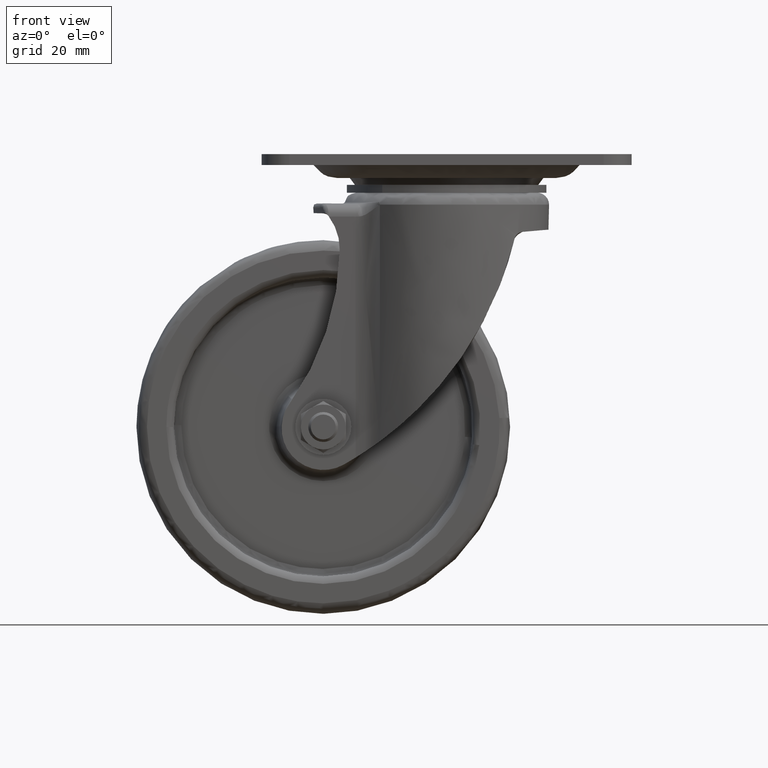
[diagram: clean part render]
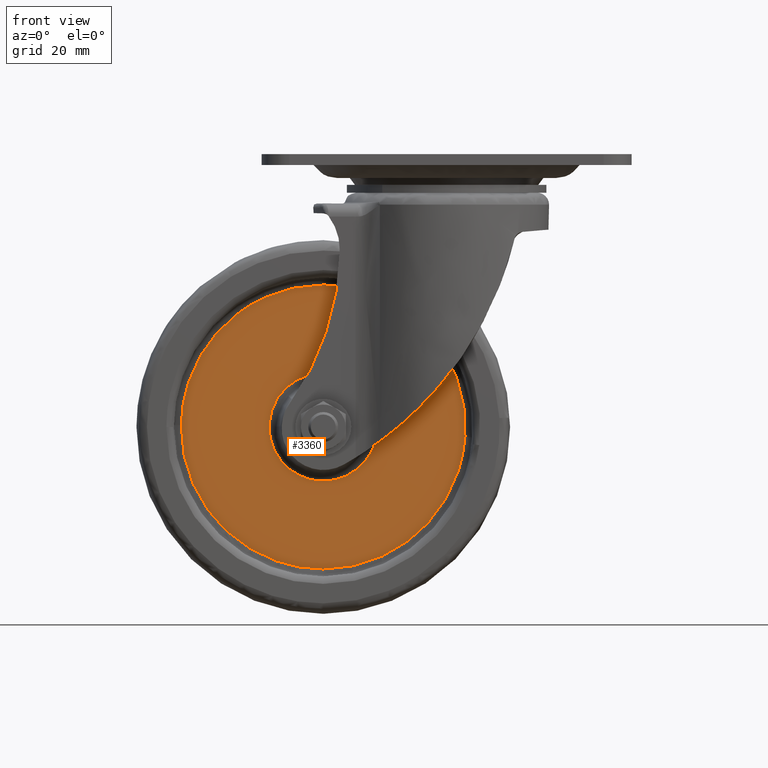
[diagram: same view with one face highlighted and labeled with its STEP entity id]
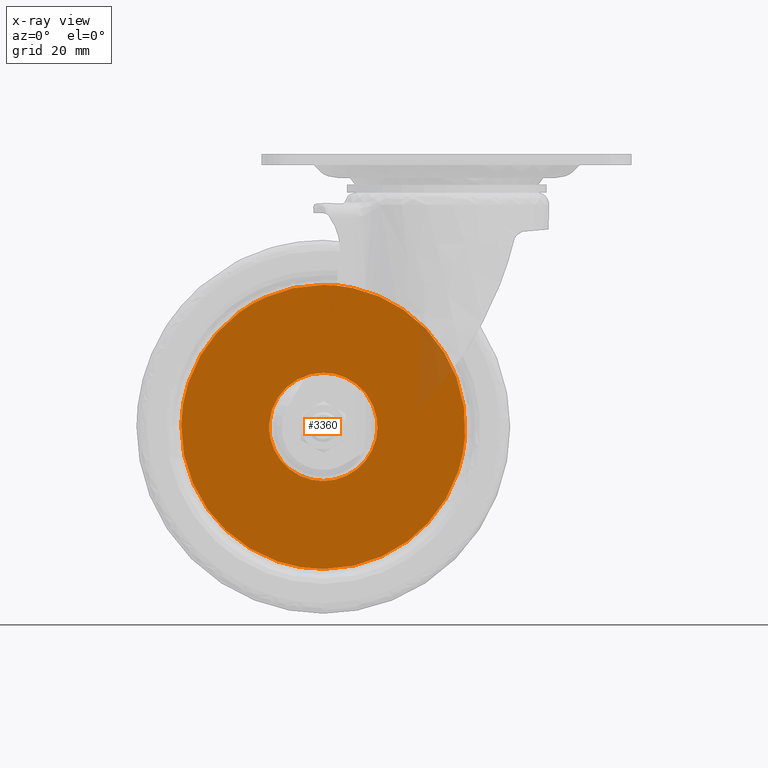
[diagram: x-ray of the same camera — body ghosted, the highlighted face saturated]
A machine part, front view. The second image highlights one B-rep face of the part: STEP entity #3360.
The next image is the same camera in x-ray: the body ghosted, the highlighted face saturated — about 3% of this face is hidden behind the body in this view.
In plain terms, the highlighted face is a freeform B-spline surface patch.
Its self-contained STEP definition (entity closure, byte-faithful):
#1558=CARTESIAN_POINT('',(4.907908623832196,-5.000000000000001,-75.649657561604528));
#1559=VERTEX_POINT('',#1558);
#1560=CARTESIAN_POINT('',(-32.999587000000091,-5.0,-34.999794000000009));
#1561=VERTEX_POINT('',#1560);
#1562=CARTESIAN_POINT('',(4.907908623832196,-5.000000000000001,-75.649657561604528));
#1563=CARTESIAN_POINT('',(5.055231833723968,-4.999999999999990,-73.544256542726103));
#1564=CARTESIAN_POINT('',(4.995580011670986,-5.000000000000036,-69.145981309447293));
#1565=CARTESIAN_POINT('',(3.710977208557743,-4.999999999999960,-62.338434710650453));
#1566=CARTESIAN_POINT('',(1.376740537811227,-5.000000000000074,-56.419110106806130));
#1567=CARTESIAN_POINT('',(-1.488439855238406,-4.999999999999910,-51.594217756226683));
#1568=CARTESIAN_POINT('',(-4.570140872767298,-5.000000000000020,-47.603434852771883));
#1569=CARTESIAN_POINT('',(-8.407316882347828,-5.000000000000008,-43.841873451447078));
#1570=CARTESIAN_POINT('',(-12.434383464425910,-4.999999999999978,-40.937553872145713));
#1571=CARTESIAN_POINT('',(-16.698232575700001,-5.000000000000064,-38.573338847144527));
#1572=CARTESIAN_POINT('',(-20.541283802044561,-4.999999999999915,-37.003881890258803));
#1573=CARTESIAN_POINT('',(-26.181142755712521,-5.000000000000144,-35.448054171621877));
#1574=CARTESIAN_POINT('',(-30.158414170138119,-4.999999999999331,-34.999180265006657));
#1575=CARTESIAN_POINT('',(-32.999587000000091,-5.0,-34.999794000000009));
#1576=B_SPLINE_CURVE_WITH_KNOTS('',3,(#1562,#1563,#1564,#1565,#1566,#1567,#1568,#1569,#1570,#1571,#1572,#1573,#1574,#1575),.UNSPECIFIED.,.F.,.U.,(4,1,1,1,1,1,1,1,1,1,1,4),(0.000000193859258,6.331646086419021,13.150338339224289,20.699635409075331,25.326627065521841,29.953577719292021,35.798117515275003,41.399196842385678,44.808572519317387,50.409690016135507,53.819064631508439,62.342382970357562),.UNSPECIFIED.);
#1577=EDGE_CURVE('',#1559,#1561,#1576,.T.);
#1593=CARTESIAN_POINT('',(-70.996586693972660,-5.0,-72.522284483843066));
#1594=VERTEX_POINT('',#1593);
#1605=CARTESIAN_POINT('',(-32.999587000000091,-5.0,-34.999794000000009));
#1606=CARTESIAN_POINT('',(-35.698107286919573,-5.000000000000020,-34.999340248587210));
#1607=CARTESIAN_POINT('',(-40.401007504913302,-4.999999999999963,-35.502979228563362));
#1608=CARTESIAN_POINT('',(-47.140892974938872,-5.000000000000031,-37.530088797720801));
#1609=CARTESIAN_POINT('',(-52.545051362904118,-4.999999999999984,-40.225167396019799));
#1610=CARTESIAN_POINT('',(-58.013403159019482,-4.999999999999991,-44.135911227681312));
#1611=CARTESIAN_POINT('',(-62.197087895342079,-5.000000000000019,-48.395128188417843));
#1612=CARTESIAN_POINT('',(-66.041790927213128,-4.999999999999969,-53.906924883600531));
#1613=CARTESIAN_POINT('',(-68.606905039714007,-5.000000000000058,-59.206120132655379));
#1614=CARTESIAN_POINT('',(-70.489309000934014,-4.999999999999999,-65.743451975001619));
#1615=CARTESIAN_POINT('',(-70.965906302291643,-4.999999999999996,-70.055260670885474));
#1616=CARTESIAN_POINT('',(-70.996586693972660,-5.0,-72.522284483843066));
#1617=B_SPLINE_CURVE_WITH_KNOTS('',3,(#1605,#1606,#1607,#1608,#1609,#1610,#1611,#1612,#1613,#1614,#1615,#1616),.UNSPECIFIED.,.F.,.U.,(4,1,1,1,1,1,1,1,1,4),(0.000000162734537,8.095472444673661,14.109304215355760,21.048360833276849,26.136995367954128,34.232391198935403,38.858418669960571,46.260038743410803,51.811243556091348,59.212829748546277),.UNSPECIFIED.);
#1618=EDGE_CURVE('',#1561,#1594,#1617,.T.);
#1646=CARTESIAN_POINT('',(-32.999587000000091,-5.0,-110.999793999999990));
#1647=VERTEX_POINT('',#1646);
#1648=CARTESIAN_POINT('',(-32.999587000000091,-5.0,-110.999793999999990));
#1649=CARTESIAN_POINT('',(-30.697262191977391,-4.999999999999991,-111.000041386292590));
#1650=CARTESIAN_POINT('',(-26.315502292238040,-5.000000000000008,-110.600314495821000));
#1651=CARTESIAN_POINT('',(-20.919982654908178,-5.000000000000016,-109.142789627674900));
#1652=CARTESIAN_POINT('',(-16.318002757986569,-4.999999999999941,-107.235645850049590));
#1653=CARTESIAN_POINT('',(-11.567848796670450,-5.000000000000276,-104.596674345656300));
#1654=CARTESIAN_POINT('',(-6.845346885015223,-4.999999999999361,-100.822075440663990));
#1655=CARTESIAN_POINT('',(-2.839656749543089,-5.000000000001066,-96.313896158812312));
#1656=CARTESIAN_POINT('',(0.095006348195398,-4.999999999998954,-91.918466979618714));
#1657=CARTESIAN_POINT('',(2.593428492713136,-5.000000000000489,-86.758617977132090));
#1658=CARTESIAN_POINT('',(4.249253921820127,-4.999999999999839,-81.261791685845708));
#1659=CARTESIAN_POINT('',(4.788828078204517,-4.999999999999914,-77.353652546590126));
#1660=CARTESIAN_POINT('',(4.907908623832196,-5.000000000000001,-75.649657561604528));
#1661=B_SPLINE_CURVE_WITH_KNOTS('',3,(#1648,#1649,#1650,#1651,#1652,#1653,#1654,#1655,#1656,#1657,#1658,#1659,#1660),.UNSPECIFIED.,.F.,.U.,(4,1,1,1,1,1,1,1,1,1,4),(0.000000151981354,6.906933699544410,13.145548280714490,16.710465821090761,21.835019265403179,29.410331134330630,34.757722564979836,39.882254500554687,45.229623389107239,51.913854398843533,57.038326261831990),.UNSPECIFIED.);
#1662=EDGE_CURVE('',#1647,#1559,#1661,.T.);
#1664=CARTESIAN_POINT('',(-70.996586693972660,-5.0,-72.522284483843066));
#1665=CARTESIAN_POINT('',(-71.034716755051264,-4.999999999999991,-75.499160769974068));
#1666=CARTESIAN_POINT('',(-70.512839240627230,-5.000000000000005,-80.441374844855304));
#1667=CARTESIAN_POINT('',(-68.401270909451242,-5.000000000000009,-87.273129145468317));
#1668=CARTESIAN_POINT('',(-65.728300361919295,-4.999999999999991,-92.618557450491394));
#1669=CARTESIAN_POINT('',(-62.801747769383077,-5.000000000000021,-96.705493927084831));
#1670=CARTESIAN_POINT('',(-59.340425293394190,-4.999999999999966,-100.552347302320300));
#1671=CARTESIAN_POINT('',(-55.265920970412012,-5.000000000000058,-104.019893867265590));
#1672=CARTESIAN_POINT('',(-50.195976901136639,-4.999999999999956,-107.024409980956610));
#1673=CARTESIAN_POINT('',(-45.633217830867054,-5.000000000000031,-108.931090687791400));
#1674=CARTESIAN_POINT('',(-40.050271741969787,-4.999999999999981,-110.526549800114400));
#1675=CARTESIAN_POINT('',(-35.819995857520993,-5.000000000000005,-111.000353001115300));
#1676=CARTESIAN_POINT('',(-32.999587000000091,-5.0,-110.999793999999990));
#1677=B_SPLINE_CURVE_WITH_KNOTS('',3,(#1664,#1665,#1666,#1667,#1668,#1669,#1670,#1671,#1672,#1673,#1674,#1675,#1676),.UNSPECIFIED.,.F.,.U.,(4,1,1,1,1,1,1,1,1,1,4),(0.000000173738016,8.931147022334237,14.806940160260829,21.387830341550849,26.793539709029812,29.849011561386600,36.899768435958833,42.775582924325121,47.476234785866431,51.706820102593767,60.167878407867207),.UNSPECIFIED.);
#1678=EDGE_CURVE('',#1594,#1647,#1677,.T.);
#3122=CARTESIAN_POINT('',(-47.134150087407683,-5.0,-76.169260032621793));
#3123=VERTEX_POINT('',#3122);
#3124=CARTESIAN_POINT('',(-32.999587000000091,-5.0,-87.485351938185033));
#3125=VERTEX_POINT('',#3124);
#3126=CARTESIAN_POINT('',(-47.134150087407683,-5.0,-76.169260032621793));
#3127=CARTESIAN_POINT('',(-46.900273378387631,-5.0,-77.212977038328262));
#3128=CARTESIAN_POINT('',(-46.149922795291737,-4.999999999999996,-79.393657065125581));
#3129=CARTESIAN_POINT('',(-44.491109202392970,-5.000000000000008,-81.989433247924367));
#3130=CARTESIAN_POINT('',(-42.597143088205733,-5.000000000000001,-83.924957459073227));
#3131=CARTESIAN_POINT('',(-40.472623462208638,-4.999999999999970,-85.518594288702758));
#3132=CARTESIAN_POINT('',(-37.328447905595667,-5.000000000000068,-87.030970930279096));
#3133=CARTESIAN_POINT('',(-34.578647043291802,-4.999999999999921,-87.486345998641184));
#3134=CARTESIAN_POINT('',(-32.999587000000091,-5.0,-87.485351938185033));
#3135=B_SPLINE_CURVE_WITH_KNOTS('',3,(#3126,#3127,#3128,#3129,#3130,#3131,#3132,#3133,#3134),.UNSPECIFIED.,.F.,.U.,(4,1,1,1,1,1,4),(0.000000212592283,3.208807935816232,6.876121148282294,9.168190928895935,11.307335037930599,14.821781376525690,19.558635684825610),.UNSPECIFIED.);
#3136=EDGE_CURVE('',#3123,#3125,#3135,.T.);
#3138=CARTESIAN_POINT('',(-18.706890588398039,-5.0,-70.643903920632482));
#3139=VERTEX_POINT('',#3138);
#3140=CARTESIAN_POINT('',(-32.999587000000091,-5.0,-87.485351938185033));
#3141=CARTESIAN_POINT('',(-31.952910911306919,-5.000000000000001,-87.485494441455359));
#3142=CARTESIAN_POINT('',(-29.794168762649122,-5.000000000000006,-87.250456299032493));
#3143=CARTESIAN_POINT('',(-26.930321022835869,-4.999999999999997,-86.263388792762612));
#3144=CARTESIAN_POINT('',(-24.388273154098979,-5.000000000000010,-84.756158862138761));
#3145=CARTESIAN_POINT('',(-22.320747503198518,-4.999999999999938,-82.925187058174515));
#3146=CARTESIAN_POINT('',(-20.810625065856350,-5.000000000000052,-80.936545644468922));
#3147=CARTESIAN_POINT('',(-19.661426487467018,-4.999999999999963,-78.801205942124298));
#3148=CARTESIAN_POINT('',(-18.942510504179989,-4.999999999999939,-76.755341532902420));
#3149=CARTESIAN_POINT('',(-18.439197334279751,-5.000000000000053,-73.914539176574010));
#3150=CARTESIAN_POINT('',(-18.493625334717251,-4.999999999999959,-71.934804954902461));
#3151=CARTESIAN_POINT('',(-18.706890588398039,-5.0,-70.643903920632482));
#3152=B_SPLINE_CURVE_WITH_KNOTS('',3,(#3140,#3141,#3142,#3143,#3144,#3145,#3146,#3147,#3148,#3149,#3150,#3151),.UNSPECIFIED.,.F.,.U.,(4,1,1,1,1,1,1,1,1,4),(0.000000317799362,3.140037268526477,6.476369286429808,9.027678574241739,11.971567144281460,14.718936455839559,16.485251711073271,19.232848782232100,21.195430768815150,25.120454872013429),.UNSPECIFIED.);
#3153=EDGE_CURVE('',#3125,#3139,#3152,.T.);
#3210=CARTESIAN_POINT('',(-32.999587000000091,-5.0,-58.514236061814991));
#3211=VERTEX_POINT('',#3210);
#3212=CARTESIAN_POINT('',(-32.999587000000091,-5.0,-58.514236061814991));
#3213=CARTESIAN_POINT('',(-34.351159115579087,-5.000000000000020,-58.513708360294480));
#3214=CARTESIAN_POINT('',(-36.445706839486178,-4.999999999999970,-58.809622583194077));
#3215=CARTESIAN_POINT('',(-38.985907253795510,-5.000000000000026,-59.756934819467922));
#3216=CARTESIAN_POINT('',(-41.069321412719042,-4.999999999999955,-60.886428778567151));
#3217=CARTESIAN_POINT('',(-43.315653722717542,-5.000000000000039,-62.646704194452319));
#3218=CARTESIAN_POINT('',(-45.231236791963738,-4.999999999999974,-65.039452227995852));
#3219=CARTESIAN_POINT('',(-46.417294635096702,-4.999999999999996,-67.403362485467014));
#3220=CARTESIAN_POINT('',(-47.243949750151259,-5.000000000000020,-69.911440479805989));
#3221=CARTESIAN_POINT('',(-47.621353024272970,-4.999999999999949,-72.815843469158679));
#3222=CARTESIAN_POINT('',(-47.370900984109539,-5.000000000000077,-75.114297596567454));
#3223=CARTESIAN_POINT('',(-47.134150087407683,-5.0,-76.169260032621793));
#3224=B_SPLINE_CURVE_WITH_KNOTS('',3,(#3212,#3213,#3214,#3215,#3216,#3217,#3218,#3219,#3220,#3221,#3222,#3223),.UNSPECIFIED.,.F.,.U.,(4,1,1,1,1,1,1,1,1,4),(0.000000337560046,4.054546390855716,6.284616969549862,8.109196662898015,11.150188244509250,14.799206443588931,17.231969725452711,19.056574319088909,22.705776446013001,25.949389144975871),.UNSPECIFIED.);
#3225=EDGE_CURVE('',#3211,#3123,#3224,.T.);
#3232=CARTESIAN_POINT('',(-18.706890588398039,-5.0,-70.643903920632482));
#3233=CARTESIAN_POINT('',(-18.922310142403891,-5.000000000000009,-69.334138393637701));
#3234=CARTESIAN_POINT('',(-19.669380460573141,-4.999999999999984,-66.928582316630326));
#3235=CARTESIAN_POINT('',(-21.626941771919331,-5.000000000000016,-63.800238179502188));
#3236=CARTESIAN_POINT('',(-23.739450456108511,-4.999999999999995,-61.753434393181273));
#3237=CARTESIAN_POINT('',(-26.261610873180370,-5.000000000000019,-60.070842496384358));
#3238=CARTESIAN_POINT('',(-29.177030850109720,-4.999999999999952,-58.852564614199203));
#3239=CARTESIAN_POINT('',(-31.725347874371639,-5.000000000000044,-58.513864222597753));
#3240=CARTESIAN_POINT('',(-32.999587000000091,-5.0,-58.514236061814991));
#3241=B_SPLINE_CURVE_WITH_KNOTS('',3,(#3232,#3233,#3234,#3235,#3236,#3237,#3238,#3239,#3240),.UNSPECIFIED.,.F.,.U.,(4,1,1,1,1,1,4),(0.000000228769377,3.981930449668496,7.486072214441879,10.990123361816190,12.742212256366891,16.564899145963700,20.387562335434691),.UNSPECIFIED.);
#3242=EDGE_CURVE('',#3139,#3211,#3241,.T.);
#3343=CARTESIAN_POINT('',(-74.792424773721336,-5.0,-31.203594147302748));
#3344=CARTESIAN_POINT('',(-74.792424773721336,-5.0,-114.795995891176100));
#3345=CARTESIAN_POINT('',(8.791935915710923,-5.0,-31.203594147302748));
#3346=CARTESIAN_POINT('',(8.791935915710923,-5.0,-114.795995891176100));
#3347=B_SPLINE_SURFACE_WITH_KNOTS('',1,1,((#3343,#3345),(#3344,#3346)),.UNSPECIFIED.,.F.,.F.,.U.,(2,2),(2,2),(0.0,83.592401743873353),(0.0,83.584360689432259),.UNSPECIFIED.);
#3348=ORIENTED_EDGE('',*,*,#1662,.T.);
#3349=ORIENTED_EDGE('',*,*,#1577,.T.);
#3350=ORIENTED_EDGE('',*,*,#1618,.T.);
#3351=ORIENTED_EDGE('',*,*,#1678,.T.);
#3352=EDGE_LOOP('',(#3348,#3349,#3350,#3351));
#3353=FACE_OUTER_BOUND('',#3352,.T.);
#3354=ORIENTED_EDGE('',*,*,#3153,.F.);
#3355=ORIENTED_EDGE('',*,*,#3136,.F.);
#3356=ORIENTED_EDGE('',*,*,#3225,.F.);
#3357=ORIENTED_EDGE('',*,*,#3242,.F.);
#3358=EDGE_LOOP('',(#3354,#3355,#3356,#3357));
#3359=FACE_BOUND('',#3358,.T.);
#3360=ADVANCED_FACE('',(#3353,#3359),#3347,.T.);